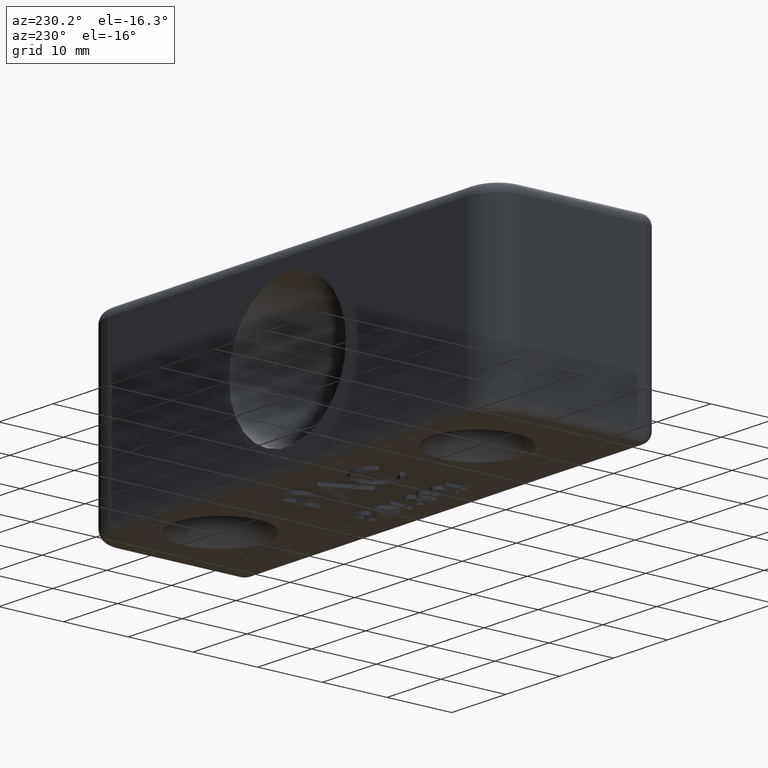
[diagram: clean part render]
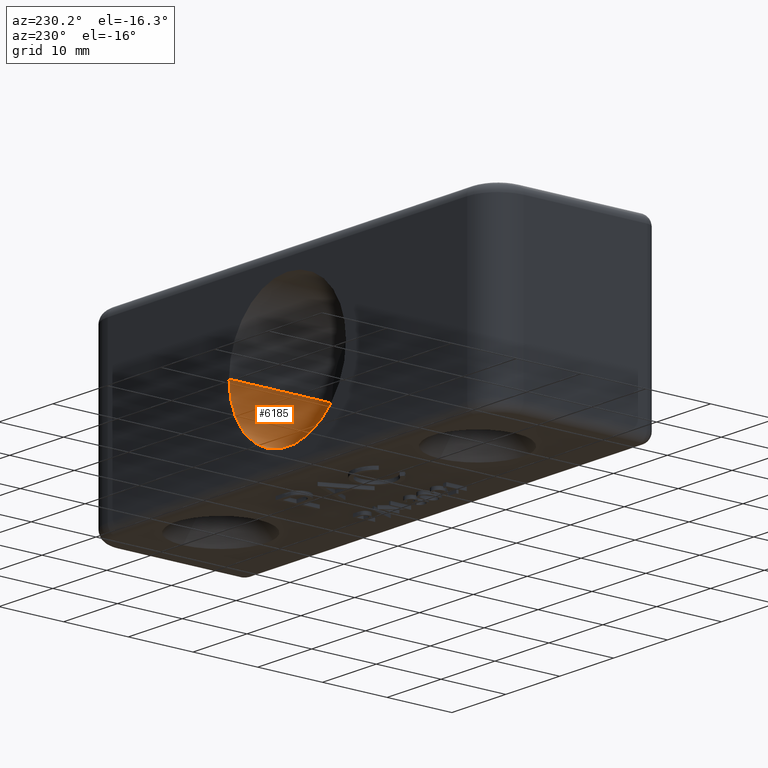
[diagram: same view with one face highlighted and labeled with its STEP entity id]
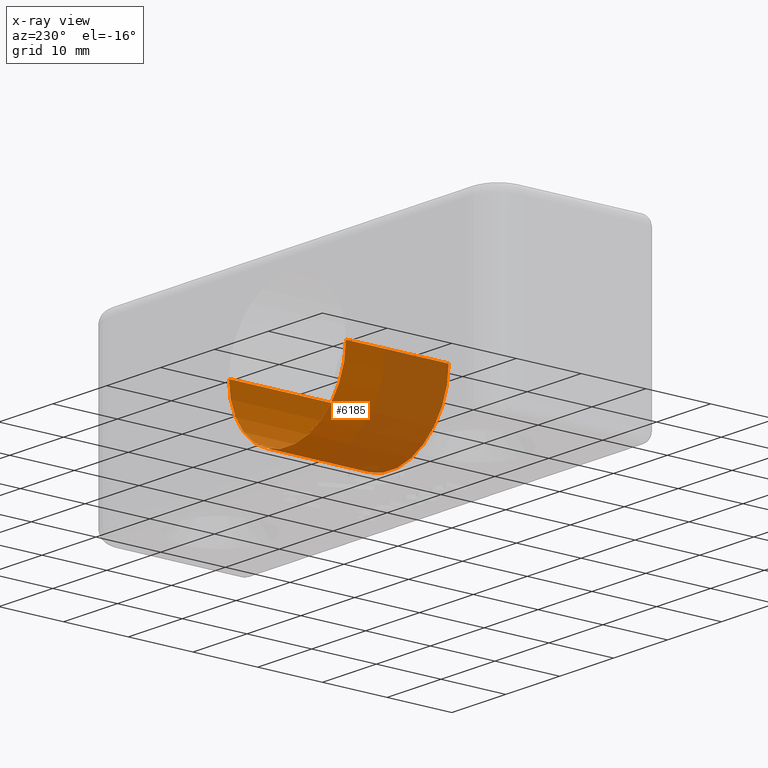
[diagram: x-ray of the same camera — body ghosted, the highlighted face saturated]
A machine part, auxiliary view. The second image highlights one B-rep face of the part: STEP entity #6185.
The next image is the same camera in x-ray: the body ghosted, the highlighted face saturated — about 46% of this face is hidden behind the body in this view.
In plain terms, the highlighted cylindrical surface (partial cylindrical patch) has radius 10.8458 mm, axis along (-0, 1, -0).
Its self-contained STEP definition (entity closure, byte-faithful):
#102 = CIRCLE ( 'NONE', #252, 0.4269999999999999900 ) ;
#252 = AXIS2_PLACEMENT_3D ( 'NONE', #7328, #7315, #7314 ) ;
#288 = AXIS2_PLACEMENT_3D ( 'NONE', #4125, #4122, #4121 ) ;
#652 = DIRECTION ( 'NONE',  ( -0.0000000000000000000, 1.000000000000000000, -0.0000000000000000000 ) ) ;
#655 = CARTESIAN_POINT ( 'NONE',  ( -0.4269999999999999900, 0.3749999999999999400, 0.0000000000000000000 ) ) ;
#2257 = CARTESIAN_POINT ( 'NONE',  ( -0.4269999999999999900, 1.000000000000000000, 0.0000000000000000000 ) ) ;
#2340 = CARTESIAN_POINT ( 'NONE',  ( 0.4269999999999999900, 1.000000000000000000, 0.0000000000000000000 ) ) ;
#2417 = CARTESIAN_POINT ( 'NONE',  ( -0.4269999999999999900, 0.3749999999999999400, 0.0000000000000000000 ) ) ;
#2585 = CARTESIAN_POINT ( 'NONE',  ( 0.4269999999999999900, 0.3749999999999999400, 0.0000000000000000000 ) ) ;
#2830 = AXIS2_PLACEMENT_3D ( 'NONE', #5784, #5787, #5786 ) ;
#3678 = EDGE_CURVE ( 'NONE', #5127, #5074, #102, .T. ) ;
#4121 = DIRECTION ( 'NONE',  ( 0.0000000000000000000, 0.0000000000000000000, 1.000000000000000000 ) ) ;
#4122 = DIRECTION ( 'NONE',  ( 0.0000000000000000000, 1.000000000000000000, 0.0000000000000000000 ) ) ;
#4125 = CARTESIAN_POINT ( 'NONE',  ( 0.0000000000000000000, 1.000000000000000000, 0.0000000000000000000 ) ) ;
#4399 = EDGE_CURVE ( 'NONE', #5036, #4983, #8157, .T. ) ;
#4485 = FACE_OUTER_BOUND ( 'NONE', #10265, .T. ) ;
#4491 = CYLINDRICAL_SURFACE ( 'NONE', #2830, 0.4269999999999999900 ) ;
#4983 = VERTEX_POINT ( 'NONE', #2257 ) ;
#5036 = VERTEX_POINT ( 'NONE', #2340 ) ;
#5074 = VERTEX_POINT ( 'NONE', #2417 ) ;
#5127 = VERTEX_POINT ( 'NONE', #2585 ) ;
#5784 = CARTESIAN_POINT ( 'NONE',  ( 0.0000000000000000000, 0.3749999999999999400, 0.0000000000000000000 ) ) ;
#5786 = DIRECTION ( 'NONE',  ( 0.0000000000000000000, 0.0000000000000000000, 1.000000000000000000 ) ) ;
#5787 = DIRECTION ( 'NONE',  ( -0.0000000000000000000, 1.000000000000000000, -0.0000000000000000000 ) ) ;
#5860 = EDGE_CURVE ( 'NONE', #5074, #4983, #8239, .T. ) ;
#5949 = EDGE_CURVE ( 'NONE', #5036, #5127, #8514, .T. ) ;
#6045 = ORIENTED_EDGE ( 'NONE', *, *, #5949, .F. ) ;
#6046 = ORIENTED_EDGE ( 'NONE', *, *, #4399, .T. ) ;
#6047 = ORIENTED_EDGE ( 'NONE', *, *, #5860, .F. ) ;
#6048 = ORIENTED_EDGE ( 'NONE', *, *, #3678, .F. ) ;
#6185 = ADVANCED_FACE ( 'NONE', ( #4485 ), #4491, .F. ) ;
#7314 = DIRECTION ( 'NONE',  ( 0.0000000000000000000, 0.0000000000000000000, 1.000000000000000000 ) ) ;
#7315 = DIRECTION ( 'NONE',  ( 0.0000000000000000000, 1.000000000000000000, 0.0000000000000000000 ) ) ;
#7328 = CARTESIAN_POINT ( 'NONE',  ( 0.0000000000000000000, 0.3749999999999999400, 0.0000000000000000000 ) ) ;
#8157 = CIRCLE ( 'NONE', #288, 0.4269999999999999900 ) ;
#8239 = LINE ( 'NONE', #655, #8241 ) ;
#8241 = VECTOR ( 'NONE', #652, 39.37007874015748100 ) ;
#8307 = CARTESIAN_POINT ( 'NONE',  ( 0.4269999999999999900, 0.3749999999999999400, 0.0000000000000000000 ) ) ;
#8309 = DIRECTION ( 'NONE',  ( 0.0000000000000000000, -1.000000000000000000, 0.0000000000000000000 ) ) ;
#8500 = VECTOR ( 'NONE', #8309, 39.37007874015748100 ) ;
#8514 = LINE ( 'NONE', #8307, #8500 ) ;
#10265 = EDGE_LOOP ( 'NONE', ( #6045, #6046, #6047, #6048 ) ) ;